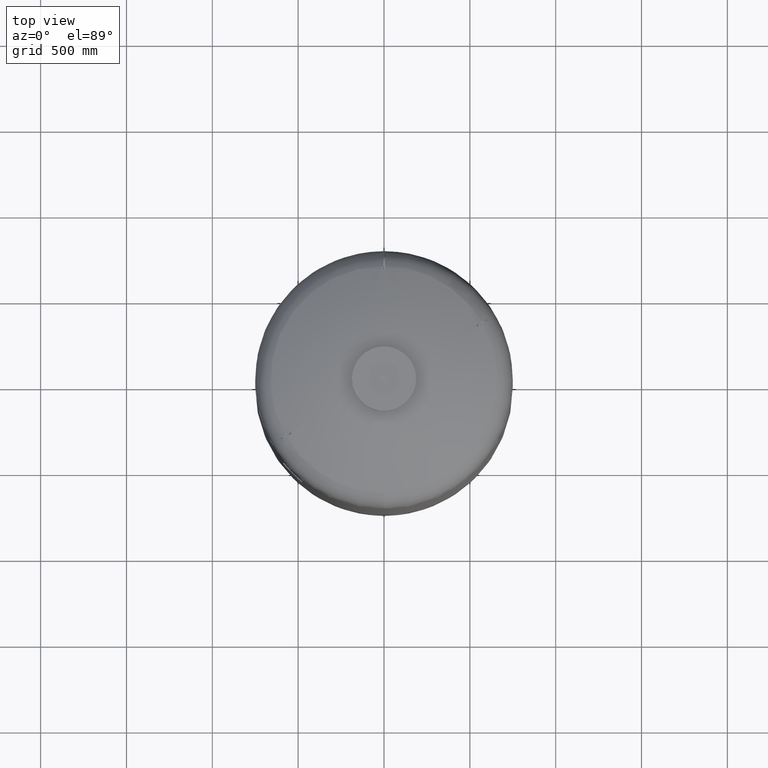
[diagram: clean part render]
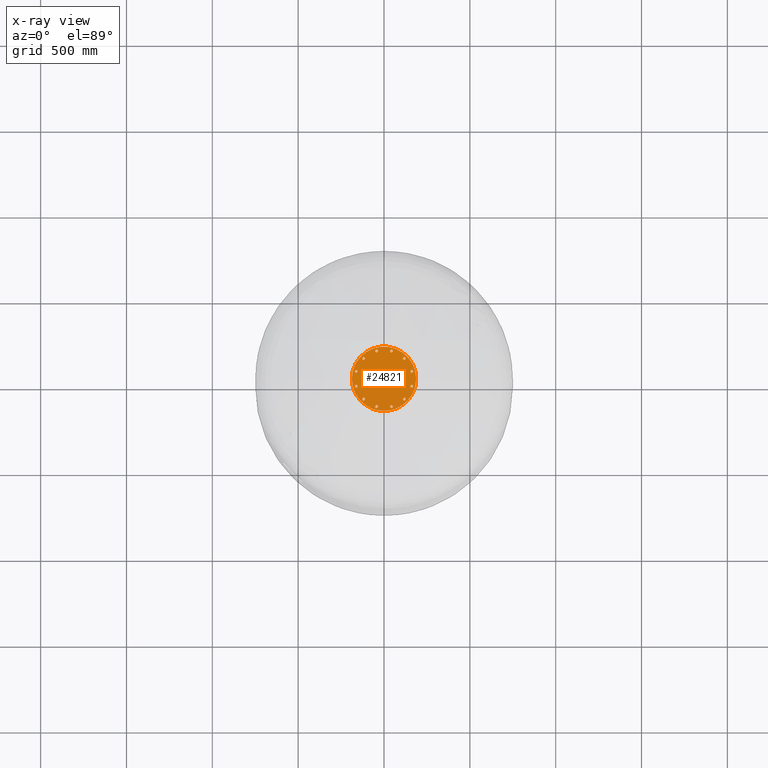
[diagram: x-ray — body ghosted, one internal face saturated and labeled with its STEP entity id]
A machine part, top view, then the same camera in x-ray: the body is ghosted and one INTERNAL B-rep face — a face not visible from any outside direction — is saturated and labeled: STEP entity #24821.
In plain terms, the highlighted planar face has unit normal (0, 0, -1).
Its self-contained STEP definition (entity closure, byte-faithful):
#16981=CARTESIAN_POINT('',(-187.500000000000000,-1.347111E-015,3569.0));
#16982=VERTEX_POINT('',#16981);
#16991=CARTESIAN_POINT('',(187.500000000000000,-2.430848E-014,3569.0));
#16992=VERTEX_POINT('',#16991);
#16993=CARTESIAN_POINT('',(-2.694223E-015,-1.347111E-015,3569.0));
#16994=DIRECTION('',(0.0,0.0,-1.0));
#16995=DIRECTION('',(-1.0,0.0,0.0));
#16996=AXIS2_PLACEMENT_3D('',#16993,#16994,#16995);
#16997=CIRCLE('',#16996,187.500000000000000);
#16998=EDGE_CURVE('',#16992,#16982,#16997,.T.);
#17193=CARTESIAN_POINT('',(126.440385848746640,118.440385848746840,3569.0));
#17194=VERTEX_POINT('',#17193);
#17210=CARTESIAN_POINT('',(110.440385848746630,118.440385848746840,3569.0));
#17211=VERTEX_POINT('',#17210);
#17218=CARTESIAN_POINT('',(118.440385848746640,118.440385848746840,3569.0));
#17219=DIRECTION('',(0.0,0.0,1.0));
#17220=DIRECTION('',(1.0,0.0,0.0));
#17221=AXIS2_PLACEMENT_3D('',#17218,#17219,#17220);
#17222=CIRCLE('',#17221,8.0);
#17223=EDGE_CURVE('',#17194,#17211,#17222,.T.);
#17395=CARTESIAN_POINT('',(168.720779133694440,39.352190054672405,3569.0));
#17396=VERTEX_POINT('',#17395);
#17412=CARTESIAN_POINT('',(154.864372673143440,47.352190054672405,3569.0));
#17413=VERTEX_POINT('',#17412);
#17420=CARTESIAN_POINT('',(161.792575903418940,43.352190054672405,3569.0));
#17421=DIRECTION('',(6.533413E-017,-3.772068E-017,1.000000000000000));
#17422=DIRECTION('',(0.866025403784439,-0.500000000000000,-7.544135E-017));
#17423=AXIS2_PLACEMENT_3D('',#17420,#17421,#17422);
#17424=CIRCLE('',#17423,8.0);
#17425=EDGE_CURVE('',#17396,#17413,#17424,.T.);
#17517=CARTESIAN_POINT('',(165.792575903419050,-50.280393284947571,3569.0));
#17518=VERTEX_POINT('',#17517);
#17534=CARTESIAN_POINT('',(157.792575903419050,-36.423986824396557,3569.0));
#17535=VERTEX_POINT('',#17534);
#17542=CARTESIAN_POINT('',(161.792575903419050,-43.352190054672064,3569.0));
#17543=DIRECTION('',(4.101789E-018,-7.104507E-018,1.0));
#17544=DIRECTION('',(0.500000000000000,-0.866025403784439,-8.203578E-018));
#17545=AXIS2_PLACEMENT_3D('',#17542,#17543,#17544);
#17546=CIRCLE('',#17545,8.0);
#17547=EDGE_CURVE('',#17518,#17535,#17546,.T.);
#17639=CARTESIAN_POINT('',(118.440385848746890,-126.440385848746640,3569.0));
#17640=VERTEX_POINT('',#17639);
#17656=CARTESIAN_POINT('',(118.440385848746890,-110.440385848746630,3569.0));
#17657=VERTEX_POINT('',#17656);
#17664=CARTESIAN_POINT('',(118.440385848746890,-118.440385848746640,3569.0));
#17665=DIRECTION('',(0.0,0.0,1.0));
#17666=DIRECTION('',(0.0,-1.0,0.0));
#17667=AXIS2_PLACEMENT_3D('',#17664,#17665,#17666);
#17668=CIRCLE('',#17667,8.0);
#17669=EDGE_CURVE('',#17640,#17657,#17668,.T.);
#17761=CARTESIAN_POINT('',(39.352190054672434,-168.720779133694440,3569.0));
#17762=VERTEX_POINT('',#17761);
#17778=CARTESIAN_POINT('',(47.352190054672427,-154.864372673143440,3569.0));
#17779=VERTEX_POINT('',#17778);
#17786=CARTESIAN_POINT('',(43.352190054672434,-161.792575903418940,3569.0));
#17787=DIRECTION('',(5.713055E-017,9.895302E-017,1.000000000000000));
#17788=DIRECTION('',(-0.500000000000000,-0.866025403784439,1.142611E-016));
#17789=AXIS2_PLACEMENT_3D('',#17786,#17787,#17788);
#17790=CIRCLE('',#17789,8.0);
#17791=EDGE_CURVE('',#17762,#17779,#17790,.T.);
#17883=CARTESIAN_POINT('',(-50.280393284947529,-165.792575903419050,3569.0));
#17884=VERTEX_POINT('',#17883);
#17900=CARTESIAN_POINT('',(-36.423986824396515,-157.792575903419050,3569.0));
#17901=VERTEX_POINT('',#17900);
#17908=CARTESIAN_POINT('',(-43.352190054672022,-161.792575903419050,3569.0));
#17909=DIRECTION('',(1.183629E-016,6.833685E-017,1.000000000000000));
#17910=DIRECTION('',(-0.866025403784439,-0.500000000000000,1.366737E-016));
#17911=AXIS2_PLACEMENT_3D('',#17908,#17909,#17910);
#17912=CIRCLE('',#17911,8.0);
#17913=EDGE_CURVE('',#17884,#17901,#17912,.T.);
#18005=CARTESIAN_POINT('',(-126.440385848746620,-118.440385848746840,3569.0));
#18006=VERTEX_POINT('',#18005);
#18022=CARTESIAN_POINT('',(-110.440385848746620,-118.440385848746840,3569.0));
#18023=VERTEX_POINT('',#18022);
#18030=CARTESIAN_POINT('',(-118.440385848746620,-118.440385848746840,3569.0));
#18031=DIRECTION('',(0.0,0.0,1.0));
#18032=DIRECTION('',(-1.0,0.0,0.0));
#18033=AXIS2_PLACEMENT_3D('',#18030,#18031,#18032);
#18034=CIRCLE('',#18033,8.0);
#18035=EDGE_CURVE('',#18006,#18023,#18034,.T.);
#18127=CARTESIAN_POINT('',(-168.720779133694440,-39.352190054672434,3569.0));
#18128=VERTEX_POINT('',#18127);
#18144=CARTESIAN_POINT('',(-154.864372673143440,-47.352190054672427,3569.0));
#18145=VERTEX_POINT('',#18144);
#18152=CARTESIAN_POINT('',(-161.792575903418940,-43.352190054672434,3569.0));
#18153=DIRECTION('',(6.533413E-017,-3.772068E-017,1.000000000000000));
#18154=DIRECTION('',(-0.866025403784439,0.500000000000000,7.544135E-017));
#18155=AXIS2_PLACEMENT_3D('',#18152,#18153,#18154);
#18156=CIRCLE('',#18155,8.0);
#18157=EDGE_CURVE('',#18128,#18145,#18156,.T.);
#18249=CARTESIAN_POINT('',(-165.792575903419050,50.280393284947500,3569.0));
#18250=VERTEX_POINT('',#18249);
#18266=CARTESIAN_POINT('',(-157.792575903419050,36.423986824396486,3569.0));
#18267=VERTEX_POINT('',#18266);
#18274=CARTESIAN_POINT('',(-161.792575903419050,43.352190054671993,3569.0));
#18275=DIRECTION('',(4.101789E-018,-7.104507E-018,1.0));
#18276=DIRECTION('',(-0.500000000000000,0.866025403784438,8.203578E-018));
#18277=AXIS2_PLACEMENT_3D('',#18274,#18275,#18276);
#18278=CIRCLE('',#18277,8.0);
#18279=EDGE_CURVE('',#18250,#18267,#18278,.T.);
#18371=CARTESIAN_POINT('',(-118.440385848746840,126.440385848746600,3569.0));
#18372=VERTEX_POINT('',#18371);
#18388=CARTESIAN_POINT('',(-118.440385848746840,110.440385848746590,3569.0));
#18389=VERTEX_POINT('',#18388);
#18396=CARTESIAN_POINT('',(-118.440385848746840,118.440385848746600,3569.0));
#18397=DIRECTION('',(0.0,0.0,1.0));
#18398=DIRECTION('',(0.0,1.0,0.0));
#18399=AXIS2_PLACEMENT_3D('',#18396,#18397,#18398);
#18400=CIRCLE('',#18399,8.000000000000002);
#18401=EDGE_CURVE('',#18372,#18389,#18400,.T.);
#18493=CARTESIAN_POINT('',(-39.352190054672498,168.720779133694410,3569.0));
#18494=VERTEX_POINT('',#18493);
#18510=CARTESIAN_POINT('',(-47.352190054672491,154.864372673143410,3569.0));
#18511=VERTEX_POINT('',#18510);
#18518=CARTESIAN_POINT('',(-43.352190054672491,161.792575903418910,3569.0));
#18519=DIRECTION('',(5.713055E-017,9.895302E-017,1.0));
#18520=DIRECTION('',(0.499999999999999,0.866025403784439,-1.142611E-016));
#18521=AXIS2_PLACEMENT_3D('',#18518,#18519,#18520);
#18522=CIRCLE('',#18521,8.0);
#18523=EDGE_CURVE('',#18494,#18511,#18522,.T.);
#18615=CARTESIAN_POINT('',(50.280393284947500,165.792575903419050,3569.0));
#18616=VERTEX_POINT('',#18615);
#18632=CARTESIAN_POINT('',(36.423986824396486,157.792575903419050,3569.0));
#18633=VERTEX_POINT('',#18632);
#18640=CARTESIAN_POINT('',(43.352190054671993,161.792575903419050,3569.0));
#18641=DIRECTION('',(1.183629E-016,6.833685E-017,1.0));
#18642=DIRECTION('',(0.866025403784438,0.500000000000000,-1.366737E-016));
#18643=AXIS2_PLACEMENT_3D('',#18640,#18641,#18642);
#18644=CIRCLE('',#18643,8.0);
#18645=EDGE_CURVE('',#18616,#18633,#18644,.T.);
#18656=CARTESIAN_POINT('',(43.352190054671993,161.792575903419050,3569.0));
#18657=DIRECTION('',(1.183629E-016,6.833685E-017,1.0));
#18658=DIRECTION('',(0.866025403784438,0.500000000000000,-1.366737E-016));
#18659=AXIS2_PLACEMENT_3D('',#18656,#18657,#18658);
#18660=CIRCLE('',#18659,8.0);
#18661=EDGE_CURVE('',#18633,#18616,#18660,.T.);
#18930=CARTESIAN_POINT('',(-43.352190054672491,161.792575903418910,3569.0));
#18931=DIRECTION('',(5.713055E-017,9.895302E-017,1.0));
#18932=DIRECTION('',(0.499999999999999,0.866025403784439,-1.142611E-016));
#18933=AXIS2_PLACEMENT_3D('',#18930,#18931,#18932);
#18934=CIRCLE('',#18933,8.0);
#18935=EDGE_CURVE('',#18511,#18494,#18934,.T.);
#19204=CARTESIAN_POINT('',(-118.440385848746840,118.440385848746600,3569.0));
#19205=DIRECTION('',(0.0,0.0,1.0));
#19206=DIRECTION('',(0.0,1.0,0.0));
#19207=AXIS2_PLACEMENT_3D('',#19204,#19205,#19206);
#19208=CIRCLE('',#19207,8.000000000000002);
#19209=EDGE_CURVE('',#18389,#18372,#19208,.T.);
#19478=CARTESIAN_POINT('',(-161.792575903419050,43.352190054671993,3569.0));
#19479=DIRECTION('',(4.101789E-018,-7.104507E-018,1.0));
#19480=DIRECTION('',(-0.500000000000000,0.866025403784438,8.203578E-018));
#19481=AXIS2_PLACEMENT_3D('',#19478,#19479,#19480);
#19482=CIRCLE('',#19481,8.0);
#19483=EDGE_CURVE('',#18267,#18250,#19482,.T.);
#19752=CARTESIAN_POINT('',(-161.792575903418940,-43.352190054672434,3569.0));
#19753=DIRECTION('',(6.533413E-017,-3.772068E-017,1.000000000000000));
#19754=DIRECTION('',(-0.866025403784439,0.500000000000000,7.544135E-017));
#19755=AXIS2_PLACEMENT_3D('',#19752,#19753,#19754);
#19756=CIRCLE('',#19755,8.0);
#19757=EDGE_CURVE('',#18145,#18128,#19756,.T.);
#20026=CARTESIAN_POINT('',(-118.440385848746620,-118.440385848746840,3569.0));
#20027=DIRECTION('',(0.0,0.0,1.0));
#20028=DIRECTION('',(-1.0,0.0,0.0));
#20029=AXIS2_PLACEMENT_3D('',#20026,#20027,#20028);
#20030=CIRCLE('',#20029,8.0);
#20031=EDGE_CURVE('',#18023,#18006,#20030,.T.);
#20300=CARTESIAN_POINT('',(-43.352190054672022,-161.792575903419050,3569.0));
#20301=DIRECTION('',(1.183629E-016,6.833685E-017,1.000000000000000));
#20302=DIRECTION('',(-0.866025403784439,-0.500000000000000,1.366737E-016));
#20303=AXIS2_PLACEMENT_3D('',#20300,#20301,#20302);
#20304=CIRCLE('',#20303,8.0);
#20305=EDGE_CURVE('',#17901,#17884,#20304,.T.);
#20574=CARTESIAN_POINT('',(43.352190054672434,-161.792575903418940,3569.0));
#20575=DIRECTION('',(5.713055E-017,9.895302E-017,1.000000000000000));
#20576=DIRECTION('',(-0.500000000000000,-0.866025403784439,1.142611E-016));
#20577=AXIS2_PLACEMENT_3D('',#20574,#20575,#20576);
#20578=CIRCLE('',#20577,8.0);
#20579=EDGE_CURVE('',#17779,#17762,#20578,.T.);
#20848=CARTESIAN_POINT('',(118.440385848746890,-118.440385848746640,3569.0));
#20849=DIRECTION('',(0.0,0.0,1.0));
#20850=DIRECTION('',(0.0,-1.0,0.0));
#20851=AXIS2_PLACEMENT_3D('',#20848,#20849,#20850);
#20852=CIRCLE('',#20851,8.0);
#20853=EDGE_CURVE('',#17657,#17640,#20852,.T.);
#21122=CARTESIAN_POINT('',(161.792575903419050,-43.352190054672064,3569.0));
#21123=DIRECTION('',(4.101789E-018,-7.104507E-018,1.0));
#21124=DIRECTION('',(0.500000000000000,-0.866025403784439,-8.203578E-018));
#21125=AXIS2_PLACEMENT_3D('',#21122,#21123,#21124);
#21126=CIRCLE('',#21125,8.0);
#21127=EDGE_CURVE('',#17535,#17518,#21126,.T.);
#21396=CARTESIAN_POINT('',(161.792575903418940,43.352190054672405,3569.0));
#21397=DIRECTION('',(6.533413E-017,-3.772068E-017,1.000000000000000));
#21398=DIRECTION('',(0.866025403784439,-0.500000000000000,-7.544135E-017));
#21399=AXIS2_PLACEMENT_3D('',#21396,#21397,#21398);
#21400=CIRCLE('',#21399,8.0);
#21401=EDGE_CURVE('',#17413,#17396,#21400,.T.);
#21920=CARTESIAN_POINT('',(118.440385848746640,118.440385848746840,3569.0));
#21921=DIRECTION('',(0.0,0.0,1.0));
#21922=DIRECTION('',(1.0,0.0,0.0));
#21923=AXIS2_PLACEMENT_3D('',#21920,#21921,#21922);
#21924=CIRCLE('',#21923,8.0);
#21925=EDGE_CURVE('',#17211,#17194,#21924,.T.);
#24754=CARTESIAN_POINT('',(-2.694223E-015,-1.347111E-015,3569.0));
#24755=DIRECTION('',(0.0,0.0,-1.0));
#24756=DIRECTION('',(-1.0,0.0,0.0));
#24757=AXIS2_PLACEMENT_3D('',#24754,#24755,#24756);
#24758=CIRCLE('',#24757,187.500000000000000);
#24759=EDGE_CURVE('',#16982,#16992,#24758,.T.);
#24764=CARTESIAN_POINT('',(-93.749999999999929,-1.347111E-015,3569.0));
#24765=DIRECTION('',(0.0,0.0,-1.0));
#24766=DIRECTION('',(0.0,-1.0,0.0));
#24767=AXIS2_PLACEMENT_3D('',#24764,#24765,#24766);
#24768=PLANE('',#24767);
#24769=ORIENTED_EDGE('',*,*,#24759,.T.);
#24770=ORIENTED_EDGE('',*,*,#16998,.T.);
#24771=EDGE_LOOP('',(#24769,#24770));
#24772=FACE_OUTER_BOUND('',#24771,.T.);
#24773=ORIENTED_EDGE('',*,*,#18661,.T.);
#24774=ORIENTED_EDGE('',*,*,#18645,.T.);
#24775=EDGE_LOOP('',(#24773,#24774));
#24776=FACE_BOUND('',#24775,.T.);
#24777=ORIENTED_EDGE('',*,*,#18935,.T.);
#24778=ORIENTED_EDGE('',*,*,#18523,.T.);
#24779=EDGE_LOOP('',(#24777,#24778));
#24780=FACE_BOUND('',#24779,.T.);
#24781=ORIENTED_EDGE('',*,*,#19209,.T.);
#24782=ORIENTED_EDGE('',*,*,#18401,.T.);
#24783=EDGE_LOOP('',(#24781,#24782));
#24784=FACE_BOUND('',#24783,.T.);
#24785=ORIENTED_EDGE('',*,*,#19483,.T.);
#24786=ORIENTED_EDGE('',*,*,#18279,.T.);
#24787=EDGE_LOOP('',(#24785,#24786));
#24788=FACE_BOUND('',#24787,.T.);
#24789=ORIENTED_EDGE('',*,*,#19757,.T.);
#24790=ORIENTED_EDGE('',*,*,#18157,.T.);
#24791=EDGE_LOOP('',(#24789,#24790));
#24792=FACE_BOUND('',#24791,.T.);
#24793=ORIENTED_EDGE('',*,*,#20031,.T.);
#24794=ORIENTED_EDGE('',*,*,#18035,.T.);
#24795=EDGE_LOOP('',(#24793,#24794));
#24796=FACE_BOUND('',#24795,.T.);
#24797=ORIENTED_EDGE('',*,*,#20305,.T.);
#24798=ORIENTED_EDGE('',*,*,#17913,.T.);
#24799=EDGE_LOOP('',(#24797,#24798));
#24800=FACE_BOUND('',#24799,.T.);
#24801=ORIENTED_EDGE('',*,*,#20579,.T.);
#24802=ORIENTED_EDGE('',*,*,#17791,.T.);
#24803=EDGE_LOOP('',(#24801,#24802));
#24804=FACE_BOUND('',#24803,.T.);
#24805=ORIENTED_EDGE('',*,*,#20853,.T.);
#24806=ORIENTED_EDGE('',*,*,#17669,.T.);
#24807=EDGE_LOOP('',(#24805,#24806));
#24808=FACE_BOUND('',#24807,.T.);
#24809=ORIENTED_EDGE('',*,*,#21127,.T.);
#24810=ORIENTED_EDGE('',*,*,#17547,.T.);
#24811=EDGE_LOOP('',(#24809,#24810));
#24812=FACE_BOUND('',#24811,.T.);
#24813=ORIENTED_EDGE('',*,*,#21401,.T.);
#24814=ORIENTED_EDGE('',*,*,#17425,.T.);
#24815=EDGE_LOOP('',(#24813,#24814));
#24816=FACE_BOUND('',#24815,.T.);
#24817=ORIENTED_EDGE('',*,*,#21925,.T.);
#24818=ORIENTED_EDGE('',*,*,#17223,.T.);
#24819=EDGE_LOOP('',(#24817,#24818));
#24820=FACE_BOUND('',#24819,.T.);
#24821=ADVANCED_FACE('',(#24772,#24776,#24780,#24784,#24788,#24792,#24796,#24800,#24804,#24808,#24812,#24816,#24820),#24768,.T.);